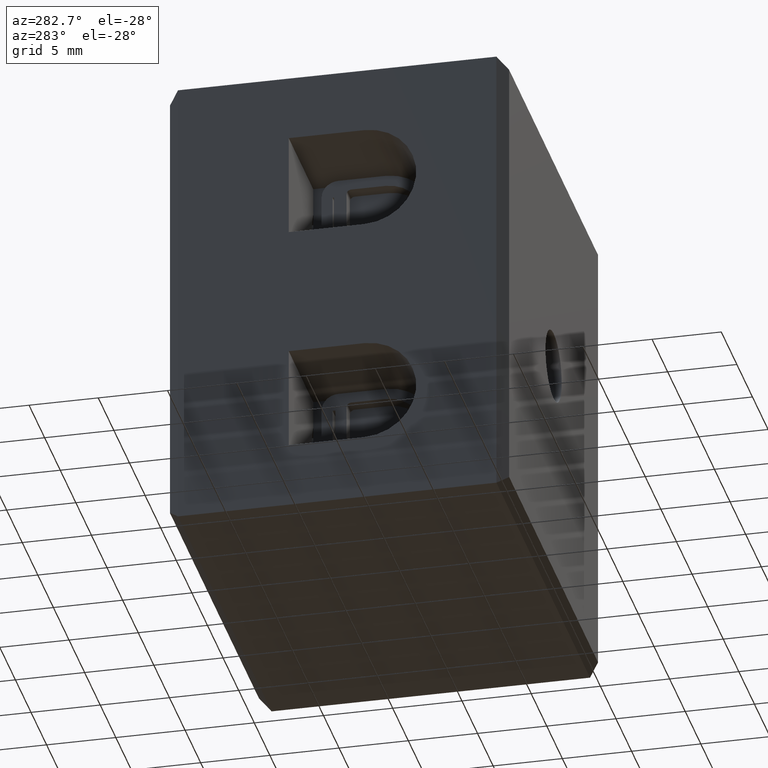
[diagram: clean part render]
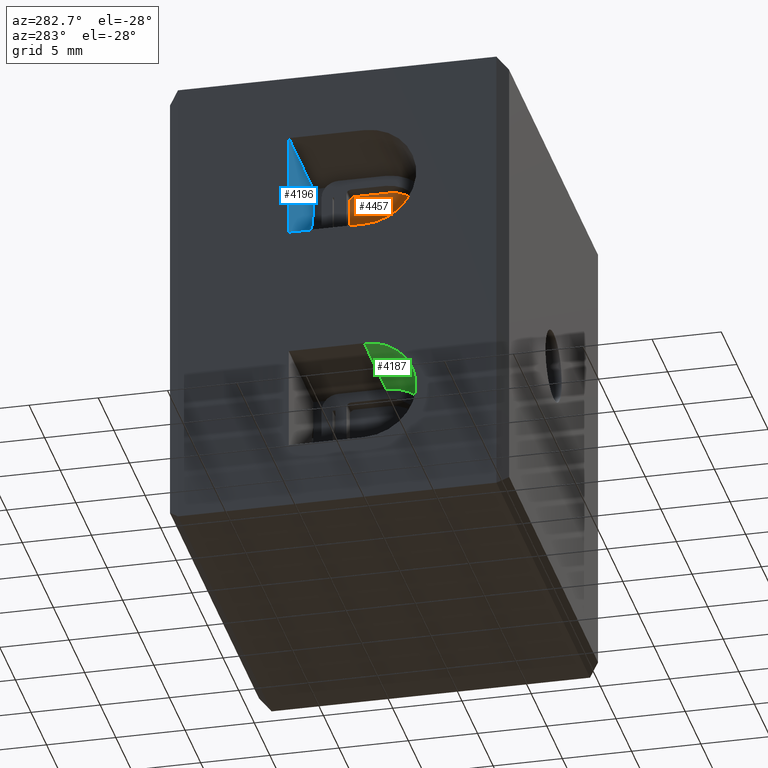
[diagram: same view with three faces highlighted in distinct colors, each labeled with its STEP entity id]
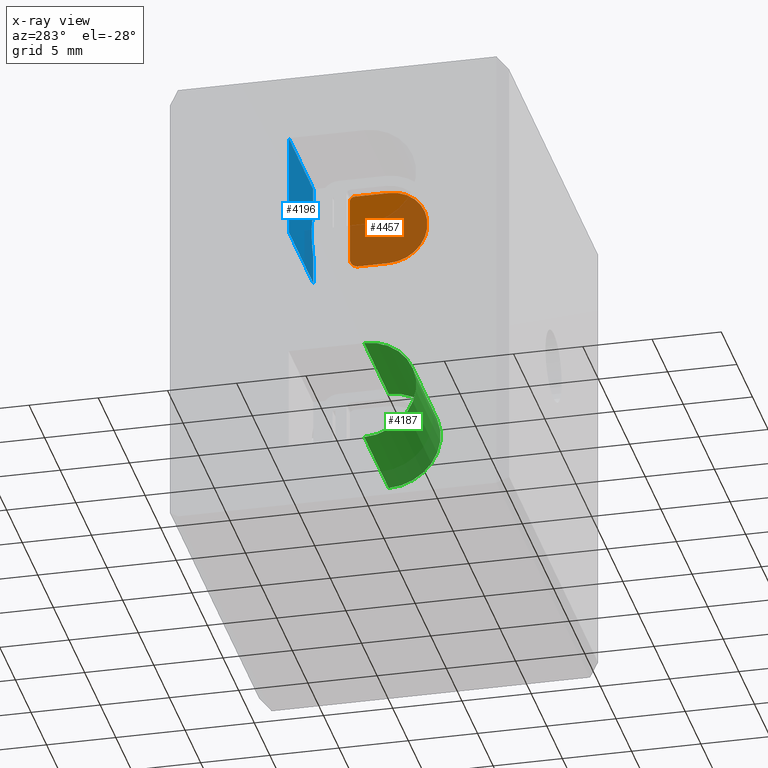
[diagram: x-ray of the same camera — body ghosted, the three highlighted faces saturated]
A machine part, auxiliary view with three faces highlighted in distinct colors.
The next image is the same camera in x-ray (body ghosted, the three faces saturated) — at least one of them is partly hidden behind the body in this view.
Their STEP definitions:

[orange] entity #4457 — the highlighted planar face has unit normal (-1, -0, 0).
#55 = CARTESIAN_POINT ( 'NONE',  ( 7.849999999999992500, 13.10000130587269000, -6.050000000000277800 ) ) ;
#65 = CARTESIAN_POINT ( 'NONE',  ( 7.849999999999992500, 12.50000130587272400, -11.29999999999995600 ) ) ;
#72 = CARTESIAN_POINT ( 'NONE',  ( 7.849999999999992500, 12.75000130587269000, -5.700000000000278200 ) ) ;
#91 = CARTESIAN_POINT ( 'NONE',  ( 7.849999999999992500, 10.30000000000000100, -11.29999999999999700 ) ) ;
#93 = CARTESIAN_POINT ( 'NONE',  ( 7.849999999999994300, 10.30000036564424400, -5.700000000000020600 ) ) ;
#118 = CARTESIAN_POINT ( 'NONE',  ( 7.849999999999992500, 13.10000130587269000, -10.69999999999998000 ) ) ;
#1385 = VERTEX_POINT ( 'NONE', #55 ) ;
#1390 = VERTEX_POINT ( 'NONE', #65 ) ;
#1404 = VERTEX_POINT ( 'NONE', #93 ) ;
#1414 = VERTEX_POINT ( 'NONE', #91 ) ;
#1419 = VERTEX_POINT ( 'NONE', #72 ) ;
#1465 = VERTEX_POINT ( 'NONE', #118 ) ;
#2725 = DIRECTION ( 'NONE',  ( 1.885568995626964300E-016, -1.000000000000000000, 0.0000000000000000000 ) ) ;
#2741 = FACE_OUTER_BOUND ( 'NONE', #4183, .T. ) ;
#2752 = PLANE ( 'NONE',  #8107 ) ;
#2755 = DIRECTION ( 'NONE',  ( -1.000000000000000000, -1.885568995626964300E-016, 0.0000000000000000000 ) ) ;
#2773 = CARTESIAN_POINT ( 'NONE',  ( 7.849999999999992500, 15.75000000000000000, -51.00382309952676300 ) ) ;
#3493 = VECTOR ( 'NONE', #6989, 1000.000000000000000 ) ;
#3652 = ORIENTED_EDGE ( 'NONE', *, *, #5190, .T. ) ;
#3681 = ORIENTED_EDGE ( 'NONE', *, *, #5222, .T. ) ;
#3688 = ORIENTED_EDGE ( 'NONE', *, *, #5208, .T. ) ;
#4183 = EDGE_LOOP ( 'NONE', ( #3681, #3652, #4484, #3688, #4486, #4528 ) ) ;
#4457 = ADVANCED_FACE ( 'NONE', ( #2741 ), #2752, .T. ) ;
#4484 = ORIENTED_EDGE ( 'NONE', *, *, #5206, .T. ) ;
#4486 = ORIENTED_EDGE ( 'NONE', *, *, #5203, .T. ) ;
#4528 = ORIENTED_EDGE ( 'NONE', *, *, #5189, .T. ) ;
#5189 = EDGE_CURVE ( 'NONE', #1414, #1404, #9309, .T. ) ;
#5190 = EDGE_CURVE ( 'NONE', #1419, #1385, #7930, .T. ) ;
#5203 = EDGE_CURVE ( 'NONE', #1390, #1414, #6910, .T. ) ;
#5206 = EDGE_CURVE ( 'NONE', #1385, #1465, #6908, .T. ) ;
#5208 = EDGE_CURVE ( 'NONE', #1465, #1390, #7948, .T. ) ;
#5222 = EDGE_CURVE ( 'NONE', #1404, #1419, #6962, .T. ) ;
#6854 = DIRECTION ( 'NONE',  ( 0.0000000000000000000, -1.000000000000000000, 0.0000000000000000000 ) ) ;
#6871 = CARTESIAN_POINT ( 'NONE',  ( 7.849999999999994300, 10.30000000000000100, -8.500000000000003600 ) ) ;
#6876 = DIRECTION ( 'NONE',  ( -1.000000000000000000, -1.885568995626964300E-016, 0.0000000000000000000 ) ) ;
#6877 = DIRECTION ( 'NONE',  ( 0.0000000000000000000, -1.000000000000000000, 0.0000000000000000000 ) ) ;
#6878 = CARTESIAN_POINT ( 'NONE',  ( 7.849999999999992500, 12.75000130587269000, -6.050000000000277800 ) ) ;
#6879 = DIRECTION ( 'NONE',  ( -1.000000000000000000, -1.885568995626964300E-016, 0.0000000000000000000 ) ) ;
#6904 = CARTESIAN_POINT ( 'NONE',  ( 7.849999999999992500, 15.74999999999950100, -11.29999999999991400 ) ) ;
#6905 = DIRECTION ( 'NONE',  ( 1.885568995626964300E-016, -1.000000000000000000, -1.261616324569339100E-014 ) ) ;
#6908 = LINE ( 'NONE', #6915, #9103 ) ;
#6910 = LINE ( 'NONE', #6904, #8733 ) ;
#6915 = CARTESIAN_POINT ( 'NONE',  ( 7.849999999999992500, 13.10000130587269000, -51.00382309952676300 ) ) ;
#6916 = DIRECTION ( 'NONE',  ( 0.0000000000000000000, 0.0000000000000000000, -1.000000000000000000 ) ) ;
#6920 = CARTESIAN_POINT ( 'NONE',  ( 7.849999999999992500, 12.50000130587272400, -10.69999999999998300 ) ) ;
#6921 = DIRECTION ( 'NONE',  ( -1.000000000000000000, -1.885568995626964300E-016, 0.0000000000000000000 ) ) ;
#6922 = DIRECTION ( 'NONE',  ( 0.0000000000000000000, -1.000000000000000000, 0.0000000000000000000 ) ) ;
#6962 = LINE ( 'NONE', #6977, #3493 ) ;
#6977 = CARTESIAN_POINT ( 'NONE',  ( 7.849999999999992500, 15.75000000000474600, -5.700000000000593500 ) ) ;
#6989 = DIRECTION ( 'NONE',  ( -1.885568995626964300E-016, 1.000000000000000000, -1.047914187415080100E-013 ) ) ;
#7923 = AXIS2_PLACEMENT_3D ( 'NONE', #6878, #6879, #6854 ) ;
#7930 = CIRCLE ( 'NONE', #7923, 0.3499999999999996400 ) ;
#7948 = CIRCLE ( 'NONE', #7999, 0.5999999999999685600 ) ;
#7999 = AXIS2_PLACEMENT_3D ( 'NONE', #6920, #6921, #6922 ) ;
#8107 = AXIS2_PLACEMENT_3D ( 'NONE', #2773, #2755, #2725 ) ;
#8733 = VECTOR ( 'NONE', #6905, 1000.000000000000000 ) ;
#9103 = VECTOR ( 'NONE', #6916, 1000.000000000000000 ) ;
#9304 = AXIS2_PLACEMENT_3D ( 'NONE', #6871, #6876, #6877 ) ;
#9309 = CIRCLE ( 'NONE', #9304, 2.799999999999993600 ) ;

[blue] entity #4196 — the highlighted planar face has unit normal (0, 1, 0).
#33 = CARTESIAN_POINT ( 'NONE',  ( 0.0000000000000000000, 15.75000000000000000, -12.25000000000000200 ) ) ;
#64 = CARTESIAN_POINT ( 'NONE',  ( 0.0000000000000000000, 15.75000000000000000, -4.750000000000000900 ) ) ;
#224 = CARTESIAN_POINT ( 'NONE',  ( 7.849999999999994300, 15.75000000000000000, -10.15831239517769900 ) ) ;
#272 = CARTESIAN_POINT ( 'NONE',  ( 7.849999999999992500, 15.75000000000000000, -6.841687604822292100 ) ) ;
#580 = FACE_OUTER_BOUND ( 'NONE', #4012, .T. ) ;
#612 = PLANE ( 'NONE',  #8027 ) ;
#622 = CARTESIAN_POINT ( 'NONE',  ( -27.99999999999999600, 15.75000000000000000, -4.750000000000000900 ) ) ;
#633 = DIRECTION ( 'NONE',  ( 0.0000000000000000000, 1.000000000000000000, 0.0000000000000000000 ) ) ;
#644 = DIRECTION ( 'NONE',  ( 0.0000000000000000000, -0.0000000000000000000, 1.000000000000000000 ) ) ;
#1097 = CARTESIAN_POINT ( 'NONE',  ( 7.849999999999996100, 15.75000000000000000, -12.25000000000000200 ) ) ;
#1103 = CARTESIAN_POINT ( 'NONE',  ( 7.849999999999996100, 15.75000000000000000, -4.750000000000000900 ) ) ;
#1290 = VERTEX_POINT ( 'NONE', #1097 ) ;
#1318 = VERTEX_POINT ( 'NONE', #1103 ) ;
#1334 = VERTEX_POINT ( 'NONE', #33 ) ;
#1369 = VERTEX_POINT ( 'NONE', #64 ) ;
#1805 = ORIENTED_EDGE ( 'NONE', *, *, #5009, .F. ) ;
#1809 = ORIENTED_EDGE ( 'NONE', *, *, #5050, .T. ) ;
#1825 = ORIENTED_EDGE ( 'NONE', *, *, #4931, .F. ) ;
#1843 = ORIENTED_EDGE ( 'NONE', *, *, #5051, .T. ) ;
#1875 = ORIENTED_EDGE ( 'NONE', *, *, #4548, .F. ) ;
#1903 = ORIENTED_EDGE ( 'NONE', *, *, #5044, .F. ) ;
#2787 = CARTESIAN_POINT ( 'NONE',  ( 10.34999999999999300, 15.75000000000000000, -8.499999999999996400 ) ) ;
#2789 = DIRECTION ( 'NONE',  ( 0.0000000000000000000, 0.0000000000000000000, 1.000000000000000000 ) ) ;
#2825 = DIRECTION ( 'NONE',  ( -0.0000000000000000000, -1.000000000000000000, -0.0000000000000000000 ) ) ;
#3685 = VERTEX_POINT ( 'NONE', #272 ) ;
#3693 = VERTEX_POINT ( 'NONE', #224 ) ;
#4012 = EDGE_LOOP ( 'NONE', ( #1875, #1805, #1903, #1843, #1809, #1825 ) ) ;
#4196 = ADVANCED_FACE ( 'NONE', ( #580 ), #612, .F. ) ;
#4548 = EDGE_CURVE ( 'NONE', #3685, #3693, #8075, .T. ) ;
#4931 = EDGE_CURVE ( 'NONE', #3693, #1290, #5889, .T. ) ;
#5009 = EDGE_CURVE ( 'NONE', #1318, #3685, #6110, .T. ) ;
#5044 = EDGE_CURVE ( 'NONE', #1369, #1318, #6435, .T. ) ;
#5050 = EDGE_CURVE ( 'NONE', #1334, #1290, #6413, .T. ) ;
#5051 = EDGE_CURVE ( 'NONE', #1369, #1334, #6421, .T. ) ;
#5862 = CARTESIAN_POINT ( 'NONE',  ( 7.849999999999996100, 15.75000000000000000, -4.750000000000000900 ) ) ;
#5863 = DIRECTION ( 'NONE',  ( -0.0000000000000000000, 0.0000000000000000000, -1.000000000000000000 ) ) ;
#5889 = LINE ( 'NONE', #5862, #8819 ) ;
#6110 = LINE ( 'NONE', #6141, #9040 ) ;
#6141 = CARTESIAN_POINT ( 'NONE',  ( 7.849999999999996100, 15.75000000000000000, -4.750000000000000900 ) ) ;
#6142 = DIRECTION ( 'NONE',  ( -0.0000000000000000000, 0.0000000000000000000, -1.000000000000000000 ) ) ;
#6397 = CARTESIAN_POINT ( 'NONE',  ( -27.99999999999999600, 15.75000000000000000, -4.750000000000000900 ) ) ;
#6398 = DIRECTION ( 'NONE',  ( 1.000000000000000000, 0.0000000000000000000, -0.0000000000000000000 ) ) ;
#6413 = LINE ( 'NONE', #6420, #9141 ) ;
#6420 = CARTESIAN_POINT ( 'NONE',  ( -27.99999999999999600, 15.75000000000000000, -12.25000000000000000 ) ) ;
#6421 = LINE ( 'NONE', #6473, #9136 ) ;
#6423 = DIRECTION ( 'NONE',  ( 1.000000000000000000, -0.0000000000000000000, 0.0000000000000000000 ) ) ;
#6435 = LINE ( 'NONE', #6397, #9135 ) ;
#6465 = DIRECTION ( 'NONE',  ( 0.0000000000000000000, 0.0000000000000000000, -1.000000000000000000 ) ) ;
#6473 = CARTESIAN_POINT ( 'NONE',  ( 0.0000000000000000000, 15.75000000000000000, 0.0000000000000000000 ) ) ;
#8027 = AXIS2_PLACEMENT_3D ( 'NONE', #622, #633, #644 ) ;
#8075 = CIRCLE ( 'NONE', #8141, 3.000000000000000900 ) ;
#8141 = AXIS2_PLACEMENT_3D ( 'NONE', #2787, #2825, #2789 ) ;
#8819 = VECTOR ( 'NONE', #5863, 1000.000000000000000 ) ;
#9040 = VECTOR ( 'NONE', #6142, 1000.000000000000000 ) ;
#9135 = VECTOR ( 'NONE', #6398, 1000.000000000000000 ) ;
#9136 = VECTOR ( 'NONE', #6465, 1000.000000000000000 ) ;
#9141 = VECTOR ( 'NONE', #6423, 1000.000000000000000 ) ;

[green] entity #4187 — the highlighted cylindrical surface (partial cylindrical patch) has radius 3.75 mm, axis along (1, 0, 0).
#34 = CARTESIAN_POINT ( 'NONE',  ( 7.849999999999996100, 10.30000000000000100, -21.75000000000000700 ) ) ;
#48 = CARTESIAN_POINT ( 'NONE',  ( 0.0000000000000000000, 10.30000000000000100, -21.75000000000000700 ) ) ;
#63 = CARTESIAN_POINT ( 'NONE',  ( 0.0000000000000000000, 10.30000000000000100, -29.25000000000000400 ) ) ;
#79 = CARTESIAN_POINT ( 'NONE',  ( 7.849999999999996100, 10.30000000000000100, -29.25000000000000400 ) ) ;
#556 = DIRECTION ( 'NONE',  ( 1.000000000000000000, 0.0000000000000000000, 0.0000000000000000000 ) ) ;
#577 = CYLINDRICAL_SURFACE ( 'NONE', #8004, 3.750000000000000000 ) ;
#578 = FACE_OUTER_BOUND ( 'NONE', #4019, .T. ) ;
#587 = CARTESIAN_POINT ( 'NONE',  ( -27.99999999999999600, 10.30000000000000100, -25.50000000000000400 ) ) ;
#596 = DIRECTION ( 'NONE',  ( 0.0000000000000000000, 0.0000000000000000000, -1.000000000000000000 ) ) ;
#1345 = VERTEX_POINT ( 'NONE', #34 ) ;
#1355 = VERTEX_POINT ( 'NONE', #63 ) ;
#1375 = VERTEX_POINT ( 'NONE', #48 ) ;
#1395 = VERTEX_POINT ( 'NONE', #79 ) ;
#1810 = ORIENTED_EDGE ( 'NONE', *, *, #5029, .T. ) ;
#1811 = ORIENTED_EDGE ( 'NONE', *, *, #5015, .F. ) ;
#1927 = ORIENTED_EDGE ( 'NONE', *, *, #5021, .F. ) ;
#1929 = ORIENTED_EDGE ( 'NONE', *, *, #4998, .F. ) ;
#4019 = EDGE_LOOP ( 'NONE', ( #1810, #1929, #1811, #1927 ) ) ;
#4187 = ADVANCED_FACE ( 'NONE', ( #578 ), #577, .F. ) ;
#4998 = EDGE_CURVE ( 'NONE', #1345, #1375, #6077, .T. ) ;
#5015 = EDGE_CURVE ( 'NONE', #1395, #1345, #8996, .T. ) ;
#5021 = EDGE_CURVE ( 'NONE', #1355, #1395, #6135, .T. ) ;
#5029 = EDGE_CURVE ( 'NONE', #1355, #1375, #9011, .T. ) ;
#5911 = DIRECTION ( 'NONE',  ( 1.000000000000000000, 0.0000000000000000000, 0.0000000000000000000 ) ) ;
#6067 = CARTESIAN_POINT ( 'NONE',  ( -27.99999999999999600, 10.30000000000000100, -21.75000000000000700 ) ) ;
#6077 = LINE ( 'NONE', #6067, #9033 ) ;
#6087 = DIRECTION ( 'NONE',  ( -1.000000000000000000, -0.0000000000000000000, -0.0000000000000000000 ) ) ;
#6113 = DIRECTION ( 'NONE',  ( -1.000000000000000000, -0.0000000000000000000, -0.0000000000000000000 ) ) ;
#6129 = DIRECTION ( 'NONE',  ( 0.0000000000000000000, 0.0000000000000000000, -1.000000000000000000 ) ) ;
#6135 = LINE ( 'NONE', #6136, #9062 ) ;
#6136 = CARTESIAN_POINT ( 'NONE',  ( -27.99999999999999600, 10.30000000000000100, -29.25000000000000400 ) ) ;
#6143 = CARTESIAN_POINT ( 'NONE',  ( 7.849999999999996100, 10.30000000000000100, -25.50000000000000400 ) ) ;
#6374 = DIRECTION ( 'NONE',  ( -1.000000000000000000, -0.0000000000000000000, -0.0000000000000000000 ) ) ;
#6379 = DIRECTION ( 'NONE',  ( 0.0000000000000000000, 0.0000000000000000000, -1.000000000000000000 ) ) ;
#6395 = CARTESIAN_POINT ( 'NONE',  ( 0.0000000000000000000, 10.30000000000000100, -25.50000000000000400 ) ) ;
#8004 = AXIS2_PLACEMENT_3D ( 'NONE', #587, #556, #596 ) ;
#8972 = AXIS2_PLACEMENT_3D ( 'NONE', #6395, #6374, #6379 ) ;
#8996 = CIRCLE ( 'NONE', #9047, 3.750000000000000000 ) ;
#9011 = CIRCLE ( 'NONE', #8972, 3.750000000000000000 ) ;
#9033 = VECTOR ( 'NONE', #6087, 1000.000000000000000 ) ;
#9047 = AXIS2_PLACEMENT_3D ( 'NONE', #6143, #6113, #6129 ) ;
#9062 = VECTOR ( 'NONE', #5911, 1000.000000000000000 ) ;